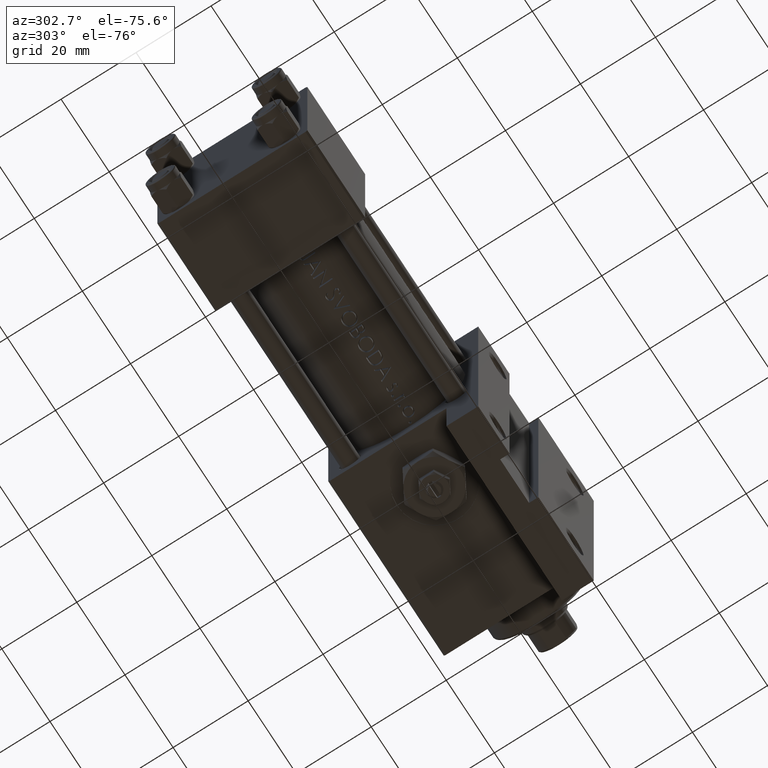
[diagram: clean part render]
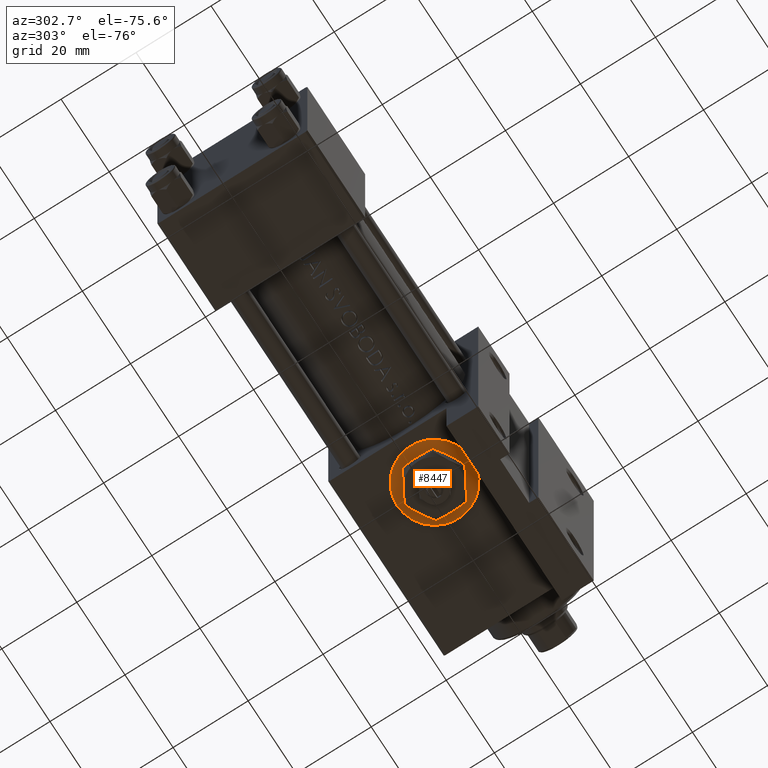
[diagram: same view with one face highlighted and labeled with its STEP entity id]
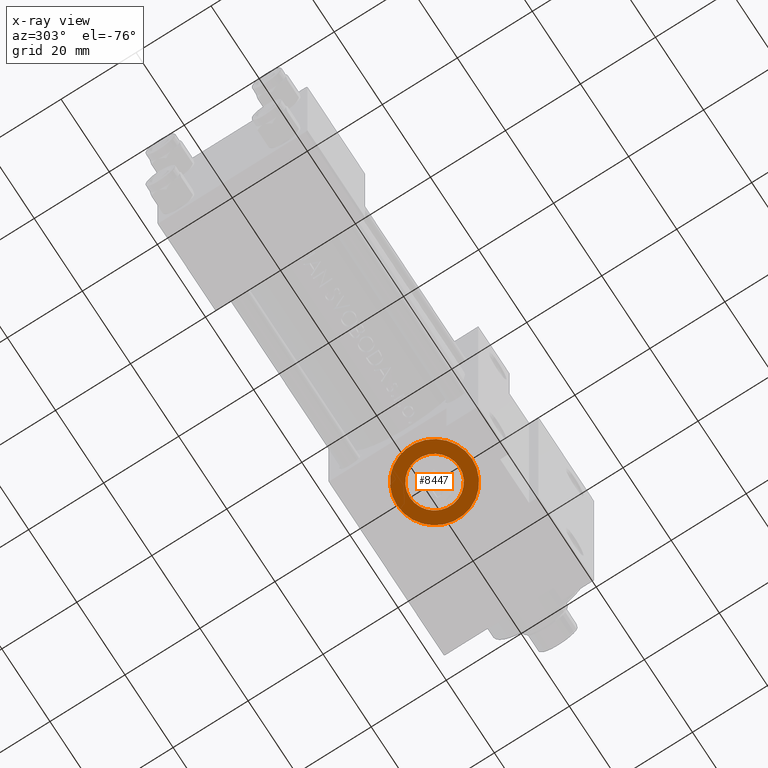
[diagram: x-ray of the same camera — body ghosted, the highlighted face saturated]
A machine part, auxiliary view. The second image highlights one B-rep face of the part: STEP entity #8447.
The next image is the same camera in x-ray: the body ghosted, the highlighted face saturated — about 0% of this face is hidden behind the body in this view.
In plain terms, the highlighted planar face has unit normal (0, 0, -1).
Its self-contained STEP definition (entity closure, byte-faithful):
#928 = DIRECTION ( 'NONE',  ( 0.000000000000000000, 1.000000000000000000, 0.000000000000000000 ) ) ;
#3195 = ORIENTED_EDGE ( 'NONE', *, *, #23916, .T. ) ;
#8447 = ADVANCED_FACE ( 'NONE', ( #9191, #40107 ), #20657, .T. ) ;
#9191 = FACE_BOUND ( 'NONE', #32397, .T. ) ;
#9254 = ORIENTED_EDGE ( 'NONE', *, *, #11356, .F. ) ;
#9293 = VERTEX_POINT ( 'NONE', #19748 ) ;
#10748 = CIRCLE ( 'NONE', #25895, 10.00000000000153300 ) ;
#11356 = EDGE_CURVE ( 'NONE', #44959, #26797, #15143, .T. ) ;
#11403 = CARTESIAN_POINT ( 'NONE',  ( 84.00000000000000000, 19.79999999999999716, 0.000000000000000000 ) ) ;
#13406 = CARTESIAN_POINT ( 'NONE',  ( 84.00000000000000000, 19.79999999999999716, 0.000000000000000000 ) ) ;
#15143 = CIRCLE ( 'NONE', #23912, 6.580000000001541061 ) ;
#17131 = AXIS2_PLACEMENT_3D ( 'NONE', #32500, #47717, #43232 ) ;
#17924 = CIRCLE ( 'NONE', #17131, 10.00000000000153300 ) ;
#19748 = CARTESIAN_POINT ( 'NONE',  ( 84.00000000000000000, 19.79999999999999716, 10.00000000000153300 ) ) ;
#20657 = PLANE ( 'NONE',  #30185 ) ;
#21079 = EDGE_CURVE ( 'NONE', #26797, #44959, #27319, .T. ) ;
#22641 = DIRECTION ( 'NONE',  ( 0.000000000000000000, 0.000000000000000000, 1.000000000000000000 ) ) ;
#23912 = AXIS2_PLACEMENT_3D ( 'NONE', #11403, #41598, #22641 ) ;
#23916 = EDGE_CURVE ( 'NONE', #37110, #9293, #10748, .T. ) ;
#24167 = DIRECTION ( 'NONE',  ( 0.000000000000000000, -0.000000000000000000, 1.000000000000000000 ) ) ;
#24411 = DIRECTION ( 'NONE',  ( 0.000000000000000000, 1.000000000000000000, 0.000000000000000000 ) ) ;
#25248 = DIRECTION ( 'NONE',  ( 0.000000000000000000, 1.000000000000000000, 0.000000000000000000 ) ) ;
#25537 = EDGE_LOOP ( 'NONE', ( #37547, #3195 ) ) ;
#25895 = AXIS2_PLACEMENT_3D ( 'NONE', #44441, #25248, #40699 ) ;
#26520 = AXIS2_PLACEMENT_3D ( 'NONE', #31370, #928, #27625 ) ;
#26797 = VERTEX_POINT ( 'NONE', #32537 ) ;
#27319 = CIRCLE ( 'NONE', #26520, 6.580000000001541061 ) ;
#27625 = DIRECTION ( 'NONE',  ( 0.000000000000000000, 0.000000000000000000, 1.000000000000000000 ) ) ;
#30180 = ORIENTED_EDGE ( 'NONE', *, *, #21079, .F. ) ;
#30185 = AXIS2_PLACEMENT_3D ( 'NONE', #13406, #24411, #24167 ) ;
#31370 = CARTESIAN_POINT ( 'NONE',  ( 84.00000000000000000, 19.79999999999999716, 0.000000000000000000 ) ) ;
#32397 = EDGE_LOOP ( 'NONE', ( #9254, #30180 ) ) ;
#32500 = CARTESIAN_POINT ( 'NONE',  ( 84.00000000000000000, 19.79999999999999716, 0.000000000000000000 ) ) ;
#32537 = CARTESIAN_POINT ( 'NONE',  ( 84.00000000000000000, 19.79999999999999716, -6.580000000001541061 ) ) ;
#33211 = CARTESIAN_POINT ( 'NONE',  ( 84.00000000000000000, 19.79999999999999716, 6.580000000001541061 ) ) ;
#37110 = VERTEX_POINT ( 'NONE', #40408 ) ;
#37547 = ORIENTED_EDGE ( 'NONE', *, *, #49010, .T. ) ;
#40107 = FACE_OUTER_BOUND ( 'NONE', #25537, .T. ) ;
#40408 = CARTESIAN_POINT ( 'NONE',  ( 84.00000000000000000, 19.79999999999999716, -10.00000000000153300 ) ) ;
#40699 = DIRECTION ( 'NONE',  ( 0.000000000000000000, 0.000000000000000000, 1.000000000000000000 ) ) ;
#41598 = DIRECTION ( 'NONE',  ( 0.000000000000000000, 1.000000000000000000, 0.000000000000000000 ) ) ;
#43232 = DIRECTION ( 'NONE',  ( 0.000000000000000000, 0.000000000000000000, 1.000000000000000000 ) ) ;
#44441 = CARTESIAN_POINT ( 'NONE',  ( 84.00000000000000000, 19.79999999999999716, 0.000000000000000000 ) ) ;
#44959 = VERTEX_POINT ( 'NONE', #33211 ) ;
#47717 = DIRECTION ( 'NONE',  ( 0.000000000000000000, 1.000000000000000000, 0.000000000000000000 ) ) ;
#49010 = EDGE_CURVE ( 'NONE', #9293, #37110, #17924, .T. ) ;